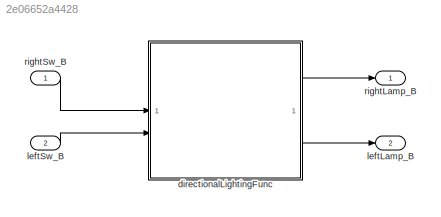
MODEL slx_2e06652a4428
KIND model
CONFIG AbsTol = auto
CONFIG EnableMultiTasking = off
CONFIG FixedStep = 0.01
CONFIG MaxStep = auto
CONFIG MinStep = auto
CONFIG RelTol = 1e-3
CONFIG SampleTimeConstraint = Unconstrained
CONFIG SolverName = FixedStepDiscrete
CONFIG StartTime = 0.0
CONFIG StopTime = 10.0
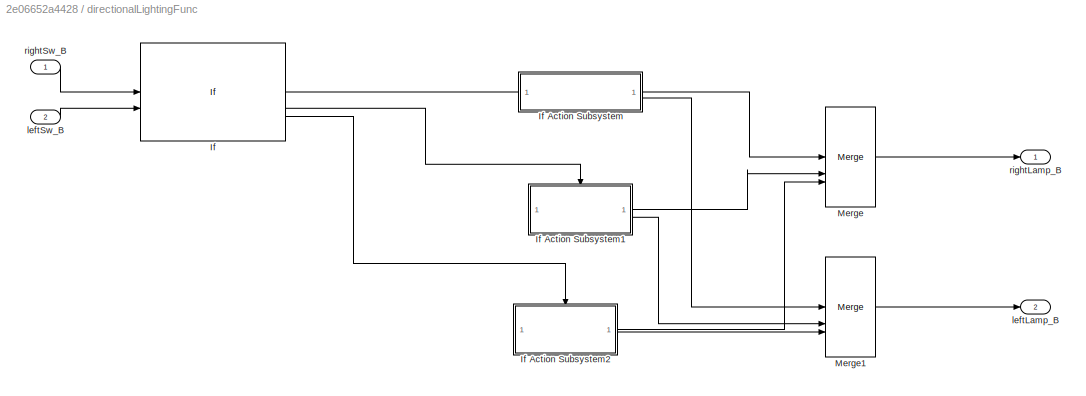
BLOCK [SubSystem] directionalLightingFunc
  RTWFcnNameOpts = Use subsystem name
  RTWFileNameOpts = Use subsystem name
  RTWSystemCode = Reusable function
  TreatAsAtomicUnit = on
BLOCK [If] directionalLightingFunc/If
  ElseIfExpressions = u1 == 0 & u2 ~= 0
  IfExpression = u1 ~= 0 & u2 == 0
  NumInputs = 2
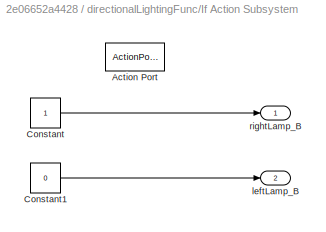
BLOCK [SubSystem] directionalLightingFunc/If Action Subsystem
  TreatAsAtomicUnit = on
BLOCK [ActionPort] directionalLightingFunc/If Action Subsystem/Action Port
  ActionPortLabel = if(u1 ~= 0 & u2 == 0)
BLOCK [Constant] directionalLightingFunc/If Action Subsystem/Constant
  OutDataTypeStr = boolean
BLOCK [Constant] directionalLightingFunc/If Action Subsystem/Constant1
  OutDataTypeStr = boolean
  Value = 0
BLOCK [Outport] directionalLightingFunc/If Action Subsystem/leftLamp_B
  Port = 2
BLOCK [Outport] directionalLightingFunc/If Action Subsystem/rightLamp_B
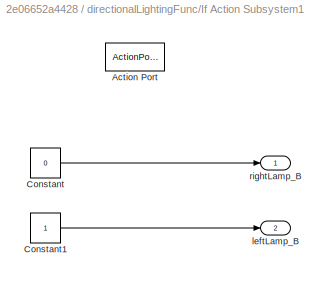
BLOCK [SubSystem] directionalLightingFunc/If Action Subsystem1
  TreatAsAtomicUnit = on
BLOCK [ActionPort] directionalLightingFunc/If Action Subsystem1/Action Port
  ActionPortLabel = elseif(u1 == 0 & u2 ~= 0)
BLOCK [Constant] directionalLightingFunc/If Action Subsystem1/Constant
  OutDataTypeStr = boolean
  Value = 0
BLOCK [Constant] directionalLightingFunc/If Action Subsystem1/Constant1
  OutDataTypeStr = boolean
BLOCK [Outport] directionalLightingFunc/If Action Subsystem1/leftLamp_B
  Port = 2
BLOCK [Outport] directionalLightingFunc/If Action Subsystem1/rightLamp_B
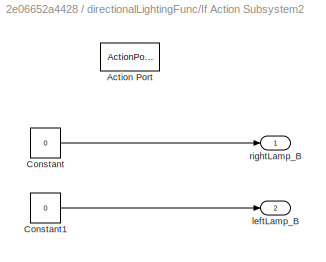
BLOCK [SubSystem] directionalLightingFunc/If Action Subsystem2
  TreatAsAtomicUnit = on
BLOCK [ActionPort] directionalLightingFunc/If Action Subsystem2/Action Port
  ActionPortLabel = else
BLOCK [Constant] directionalLightingFunc/If Action Subsystem2/Constant
  OutDataTypeStr = boolean
  Value = 0
BLOCK [Constant] directionalLightingFunc/If Action Subsystem2/Constant1
  OutDataTypeStr = boolean
  Value = 0
BLOCK [Outport] directionalLightingFunc/If Action Subsystem2/leftLamp_B
  Port = 2
BLOCK [Outport] directionalLightingFunc/If Action Subsystem2/rightLamp_B
BLOCK [Merge] directionalLightingFunc/Merge
  Inputs = 3
BLOCK [Merge] directionalLightingFunc/Merge1
  Inputs = 3
BLOCK [Outport] directionalLightingFunc/leftLamp_B
  OutDataTypeStr = boolean
  Port = 2
BLOCK [Inport] directionalLightingFunc/leftSw_B
  OutDataTypeStr = boolean
  Port = 2
BLOCK [Outport] directionalLightingFunc/rightLamp_B
  OutDataTypeStr = boolean
BLOCK [Inport] directionalLightingFunc/rightSw_B
  OutDataTypeStr = boolean
BLOCK [Outport] leftLamp_B
  OutDataTypeStr = boolean
  Port = 2
BLOCK [Inport] leftSw_B
  OutDataTypeStr = boolean
  Port = 2
BLOCK [Outport] rightLamp_B
  OutDataTypeStr = boolean
BLOCK [Inport] rightSw_B
  OutDataTypeStr = boolean
LINE directionalLightingFunc/If Action Subsystem/Constant1:1 -> directionalLightingFunc/If Action Subsystem/leftLamp_B:1
LINE directionalLightingFunc/If Action Subsystem/Constant:1 -> directionalLightingFunc/If Action Subsystem/rightLamp_B:1
LINE directionalLightingFunc/If Action Subsystem1/Constant1:1 -> directionalLightingFunc/If Action Subsystem1/leftLamp_B:1
LINE directionalLightingFunc/If Action Subsystem1/Constant:1 -> directionalLightingFunc/If Action Subsystem1/rightLamp_B:1
LINE directionalLightingFunc/If Action Subsystem1:1 -> directionalLightingFunc/Merge:2
LINE directionalLightingFunc/If Action Subsystem1:2 -> directionalLightingFunc/Merge1:2
LINE directionalLightingFunc/If Action Subsystem2/Constant1:1 -> directionalLightingFunc/If Action Subsystem2/leftLamp_B:1
LINE directionalLightingFunc/If Action Subsystem2/Constant:1 -> directionalLightingFunc/If Action Subsystem2/rightLamp_B:1
LINE directionalLightingFunc/If Action Subsystem2:1 -> directionalLightingFunc/Merge:3
LINE directionalLightingFunc/If Action Subsystem2:2 -> directionalLightingFunc/Merge1:3
LINE directionalLightingFunc/If Action Subsystem:1 -> directionalLightingFunc/Merge:1
LINE directionalLightingFunc/If Action Subsystem:2 -> directionalLightingFunc/Merge1:1
LINE directionalLightingFunc/If:1 -> directionalLightingFunc/If Action Subsystem:ifaction
LINE directionalLightingFunc/If:2 -> directionalLightingFunc/If Action Subsystem1:ifaction
LINE directionalLightingFunc/If:3 -> directionalLightingFunc/If Action Subsystem2:ifaction
LINE directionalLightingFunc/Merge1:1 -> directionalLightingFunc/leftLamp_B:1
LINE directionalLightingFunc/Merge:1 -> directionalLightingFunc/rightLamp_B:1
LINE directionalLightingFunc/leftSw_B:1 -> directionalLightingFunc/If:2
LINE directionalLightingFunc/rightSw_B:1 -> directionalLightingFunc/If:1
LINE directionalLightingFunc:1 -> rightLamp_B:1
LINE directionalLightingFunc:2 -> leftLamp_B:1
LINE leftSw_B:1 -> directionalLightingFunc:2
LINE rightSw_B:1 -> directionalLightingFunc:1
